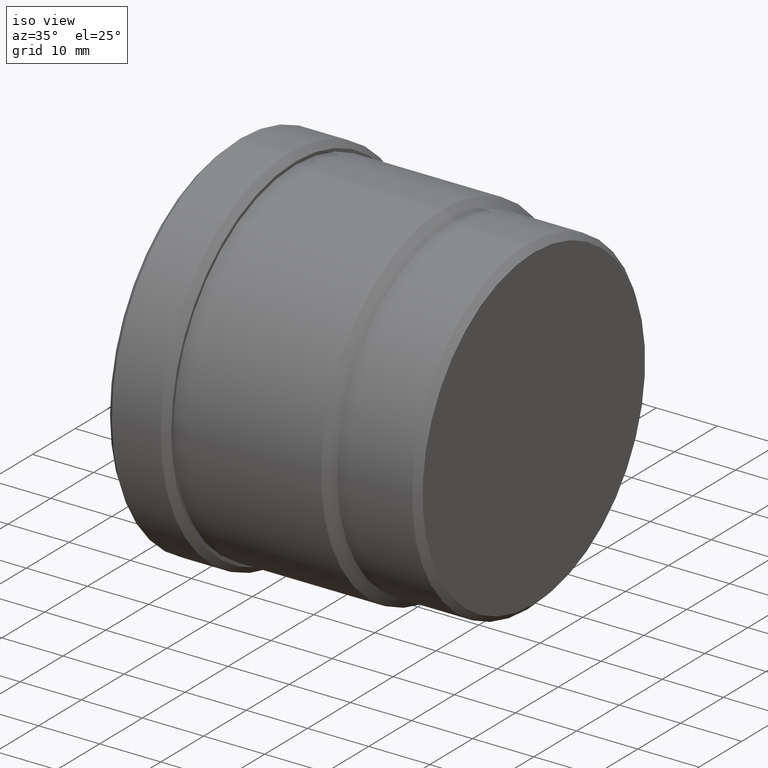
[diagram: clean part render]
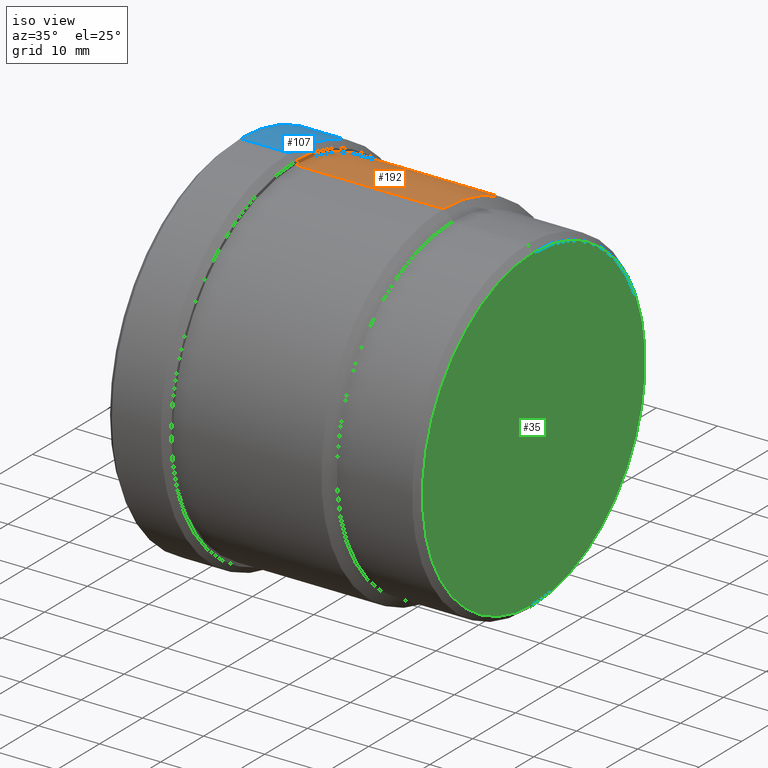
[diagram: same view with three faces highlighted in distinct colors, each labeled with its STEP entity id]
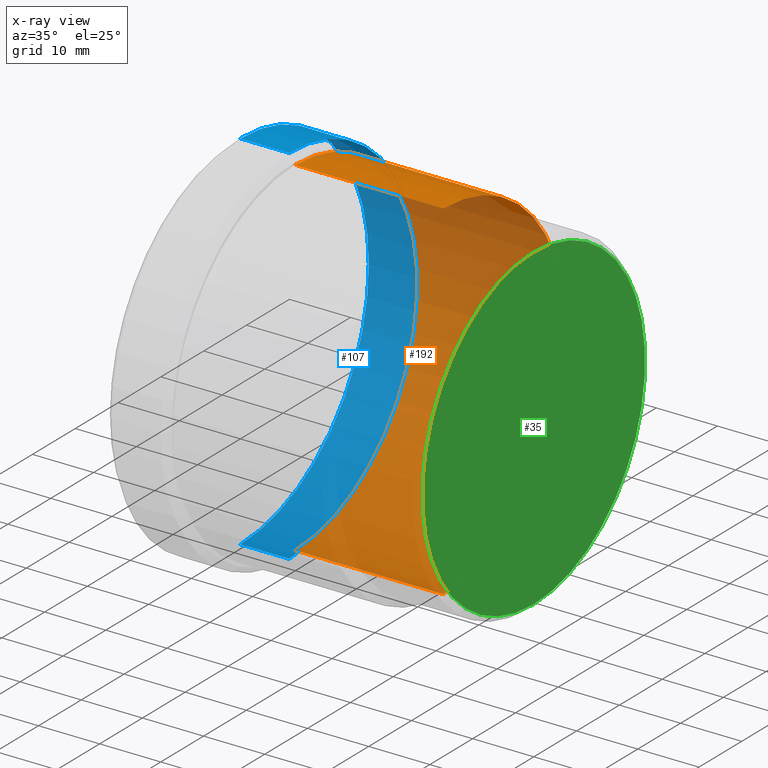
[diagram: x-ray of the same camera — body ghosted, the three highlighted faces saturated]
A machine part, iso view with three faces highlighted in distinct colors.
The next image is the same camera in x-ray (body ghosted, the three faces saturated) — at least one of them is partly hidden behind the body in this view.
Their STEP definitions:

[orange] entity #192 — the highlighted cylindrical surface (partial cylindrical patch) has radius 28.5 mm, axis along (-1, -0, -0).
#1 = DIRECTION ( 'NONE',  ( 0.000000000000000000, 0.000000000000000000, 1.000000000000000000 ) ) ;
#9 = DIRECTION ( 'NONE',  ( -1.000000000000000000, -0.000000000000000000, -0.000000000000000000 ) ) ;
#19 = CARTESIAN_POINT ( 'NONE',  ( 34.20000000000000995, 0.000000000000000000, 0.000000000000000000 ) ) ;
#22 = ORIENTED_EDGE ( 'NONE', *, *, #118, .F. ) ;
#38 = CARTESIAN_POINT ( 'NONE',  ( 10.00000000000000888, 0.000000000000000000, 0.000000000000000000 ) ) ;
#47 = VERTEX_POINT ( 'NONE', #459 ) ;
#55 = VERTEX_POINT ( 'NONE', #315 ) ;
#78 = CARTESIAN_POINT ( 'NONE',  ( -255.8344310284800258, 0.000000000000000000, 28.50000000000000000 ) ) ;
#80 = AXIS2_PLACEMENT_3D ( 'NONE', #19, #160, #332 ) ;
#92 = VERTEX_POINT ( 'NONE', #137 ) ;
#102 = ORIENTED_EDGE ( 'NONE', *, *, #383, .F. ) ;
#109 = ORIENTED_EDGE ( 'NONE', *, *, #308, .T. ) ;
#110 = FACE_OUTER_BOUND ( 'NONE', #209, .T. ) ;
#111 = AXIS2_PLACEMENT_3D ( 'NONE', #38, #9, #328 ) ;
#118 = EDGE_CURVE ( 'NONE', #55, #468, #219, .T. ) ;
#137 = CARTESIAN_POINT ( 'NONE',  ( 10.00000000000000888, 3.490243377569956456E-15, -28.50000000000000000 ) ) ;
#142 = DIRECTION ( 'NONE',  ( -1.000000000000000000, -0.000000000000000000, -0.000000000000000000 ) ) ;
#160 = DIRECTION ( 'NONE',  ( -1.000000000000000000, -0.000000000000000000, -0.000000000000000000 ) ) ;
#191 = ORIENTED_EDGE ( 'NONE', *, *, #284, .T. ) ;
#192 = ADVANCED_FACE ( 'NONE', ( #110 ), #438, .T. ) ;
#202 = CARTESIAN_POINT ( 'NONE',  ( 10.00000000000000888, 0.000000000000000000, 28.50000000000000000 ) ) ;
#209 = EDGE_LOOP ( 'NONE', ( #109, #191, #102, #22 ) ) ;
#219 = LINE ( 'NONE', #78, #431 ) ;
#228 = AXIS2_PLACEMENT_3D ( 'NONE', #322, #324, #1 ) ;
#256 = CIRCLE ( 'NONE', #111, 28.50000000000000000 ) ;
#284 = EDGE_CURVE ( 'NONE', #47, #92, #415, .T. ) ;
#301 = CARTESIAN_POINT ( 'NONE',  ( -255.8344310284800258, 3.490243377569956456E-15, -28.50000000000000000 ) ) ;
#308 = EDGE_CURVE ( 'NONE', #55, #47, #421, .T. ) ;
#315 = CARTESIAN_POINT ( 'NONE',  ( 34.20000000000000995, 0.000000000000000000, 28.50000000000000000 ) ) ;
#322 = CARTESIAN_POINT ( 'NONE',  ( -255.8344310284800258, 0.000000000000000000, 0.000000000000000000 ) ) ;
#324 = DIRECTION ( 'NONE',  ( -1.000000000000000000, -0.000000000000000000, -0.000000000000000000 ) ) ;
#328 = DIRECTION ( 'NONE',  ( 0.000000000000000000, 0.000000000000000000, 1.000000000000000000 ) ) ;
#332 = DIRECTION ( 'NONE',  ( 0.000000000000000000, 0.000000000000000000, 1.000000000000000000 ) ) ;
#343 = DIRECTION ( 'NONE',  ( -1.000000000000000000, -0.000000000000000000, -0.000000000000000000 ) ) ;
#362 = VECTOR ( 'NONE', #343, 1000.000000000000000 ) ;
#383 = EDGE_CURVE ( 'NONE', #468, #92, #256, .T. ) ;
#415 = LINE ( 'NONE', #301, #362 ) ;
#421 = CIRCLE ( 'NONE', #80, 28.50000000000000000 ) ;
#431 = VECTOR ( 'NONE', #142, 1000.000000000000000 ) ;
#438 = CYLINDRICAL_SURFACE ( 'NONE', #228, 28.50000000000000000 ) ;
#459 = CARTESIAN_POINT ( 'NONE',  ( 34.20000000000000995, 3.490243377569956456E-15, -28.50000000000000000 ) ) ;
#468 = VERTEX_POINT ( 'NONE', #202 ) ;

[blue] entity #107 — the highlighted cylindrical surface (partial cylindrical patch) has radius 30 mm, axis along (-1, -0, -0).
#6 = AXIS2_PLACEMENT_3D ( 'NONE', #470, #50, #146 ) ;
#40 = VECTOR ( 'NONE', #44, 1000.000000000000000 ) ;
#44 = DIRECTION ( 'NONE',  ( -1.000000000000000000, -0.000000000000000000, -0.000000000000000000 ) ) ;
#50 = DIRECTION ( 'NONE',  ( 1.000000000000000000, 0.000000000000000000, 0.000000000000000000 ) ) ;
#54 = ORIENTED_EDGE ( 'NONE', *, *, #199, .T. ) ;
#60 = VERTEX_POINT ( 'NONE', #313 ) ;
#76 = LINE ( 'NONE', #365, #40 ) ;
#90 = ORIENTED_EDGE ( 'NONE', *, *, #251, .F. ) ;
#107 = ADVANCED_FACE ( 'NONE', ( #132 ), #355, .T. ) ;
#126 = CARTESIAN_POINT ( 'NONE',  ( 9.000000000000063949, 0.000000000000000000, 30.00000000000000000 ) ) ;
#132 = FACE_OUTER_BOUND ( 'NONE', #409, .T. ) ;
#135 = EDGE_CURVE ( 'NONE', #248, #60, #398, .T. ) ;
#146 = DIRECTION ( 'NONE',  ( 0.000000000000000000, 0.000000000000000000, -1.000000000000000000 ) ) ;
#151 = ORIENTED_EDGE ( 'NONE', *, *, #135, .T. ) ;
#173 = CARTESIAN_POINT ( 'NONE',  ( -255.8344310284800258, 0.000000000000000000, 0.000000000000000000 ) ) ;
#199 = EDGE_CURVE ( 'NONE', #373, #379, #349, .T. ) ;
#222 = CARTESIAN_POINT ( 'NONE',  ( 1.000000000000000888, 3.673940397442059178E-15, -30.00000000000000000 ) ) ;
#248 = VERTEX_POINT ( 'NONE', #222 ) ;
#251 = EDGE_CURVE ( 'NONE', #373, #60, #76, .T. ) ;
#278 = DIRECTION ( 'NONE',  ( -1.000000000000000000, -0.000000000000000000, -0.000000000000000000 ) ) ;
#287 = DIRECTION ( 'NONE',  ( 0.000000000000000000, 0.000000000000000000, 1.000000000000000000 ) ) ;
#289 = DIRECTION ( 'NONE',  ( -1.000000000000000000, -0.000000000000000000, -0.000000000000000000 ) ) ;
#303 = CARTESIAN_POINT ( 'NONE',  ( -255.8344310284800258, 3.673940397442059178E-15, -30.00000000000000000 ) ) ;
#313 = CARTESIAN_POINT ( 'NONE',  ( 1.000000000000000888, 0.000000000000000000, 30.00000000000000000 ) ) ;
#319 = VECTOR ( 'NONE', #351, 1000.000000000000000 ) ;
#327 = ORIENTED_EDGE ( 'NONE', *, *, #469, .T. ) ;
#349 = CIRCLE ( 'NONE', #412, 30.00000000000000000 ) ;
#351 = DIRECTION ( 'NONE',  ( -1.000000000000000000, -0.000000000000000000, -0.000000000000000000 ) ) ;
#355 = CYLINDRICAL_SURFACE ( 'NONE', #417, 30.00000000000000000 ) ;
#360 = CARTESIAN_POINT ( 'NONE',  ( 9.000000000000063949, 3.673940397442059178E-15, -30.00000000000000000 ) ) ;
#361 = CARTESIAN_POINT ( 'NONE',  ( 9.000000000000063949, 0.000000000000000000, 0.000000000000000000 ) ) ;
#365 = CARTESIAN_POINT ( 'NONE',  ( -255.8344310284800258, 0.000000000000000000, 30.00000000000000000 ) ) ;
#373 = VERTEX_POINT ( 'NONE', #126 ) ;
#379 = VERTEX_POINT ( 'NONE', #360 ) ;
#398 = CIRCLE ( 'NONE', #6, 30.00000000000000000 ) ;
#409 = EDGE_LOOP ( 'NONE', ( #54, #327, #151, #90 ) ) ;
#412 = AXIS2_PLACEMENT_3D ( 'NONE', #361, #289, #287 ) ;
#417 = AXIS2_PLACEMENT_3D ( 'NONE', #173, #278, #420 ) ;
#420 = DIRECTION ( 'NONE',  ( 0.000000000000000000, 0.000000000000000000, 1.000000000000000000 ) ) ;
#423 = LINE ( 'NONE', #303, #319 ) ;
#469 = EDGE_CURVE ( 'NONE', #379, #248, #423, .T. ) ;
#470 = CARTESIAN_POINT ( 'NONE',  ( 1.000000000000000888, 0.000000000000000000, 0.000000000000000000 ) ) ;

[green] entity #35 — the highlighted planar face has unit normal (-1, 0, -0).
#10 = DIRECTION ( 'NONE',  ( 1.000000000000000000, 0.000000000000000000, 0.000000000000000000 ) ) ;
#35 = ADVANCED_FACE ( 'NONE', ( #359 ), #36, .F. ) ;
#36 = PLANE ( 'NONE',  #212 ) ;
#37 = ORIENTED_EDGE ( 'NONE', *, *, #390, .T. ) ;
#42 = DIRECTION ( 'NONE',  ( 0.000000000000000000, 0.000000000000000000, 1.000000000000000000 ) ) ;
#103 = DIRECTION ( 'NONE',  ( -0.000000000000000000, 0.000000000000000000, 1.000000000000000000 ) ) ;
#104 = AXIS2_PLACEMENT_3D ( 'NONE', #333, #10, #42 ) ;
#121 = CIRCLE ( 'NONE', #299, 25.99999999999995381 ) ;
#138 = CIRCLE ( 'NONE', #104, 25.99999999999995381 ) ;
#158 = EDGE_CURVE ( 'NONE', #374, #257, #138, .T. ) ;
#176 = CARTESIAN_POINT ( 'NONE',  ( 49.00000000000000000, 27.00000000000000000, 0.000000000000000000 ) ) ;
#179 = CARTESIAN_POINT ( 'NONE',  ( 49.00000000000000000, 3.245314017740483398E-15, -25.99999999999995381 ) ) ;
#212 = AXIS2_PLACEMENT_3D ( 'NONE', #176, #249, #103 ) ;
#233 = DIRECTION ( 'NONE',  ( 0.000000000000000000, 0.000000000000000000, 1.000000000000000000 ) ) ;
#249 = DIRECTION ( 'NONE',  ( -1.000000000000000000, 0.000000000000000000, -0.000000000000000000 ) ) ;
#257 = VERTEX_POINT ( 'NONE', #179 ) ;
#270 = CARTESIAN_POINT ( 'NONE',  ( 49.00000000000000000, 0.000000000000000000, 0.000000000000000000 ) ) ;
#272 = CARTESIAN_POINT ( 'NONE',  ( 49.00000000000000000, 0.000000000000000000, 25.99999999999995381 ) ) ;
#299 = AXIS2_PLACEMENT_3D ( 'NONE', #270, #444, #233 ) ;
#333 = CARTESIAN_POINT ( 'NONE',  ( 49.00000000000000000, 0.000000000000000000, 0.000000000000000000 ) ) ;
#337 = ORIENTED_EDGE ( 'NONE', *, *, #158, .T. ) ;
#359 = FACE_OUTER_BOUND ( 'NONE', #435, .T. ) ;
#374 = VERTEX_POINT ( 'NONE', #272 ) ;
#390 = EDGE_CURVE ( 'NONE', #257, #374, #121, .T. ) ;
#435 = EDGE_LOOP ( 'NONE', ( #337, #37 ) ) ;
#444 = DIRECTION ( 'NONE',  ( 1.000000000000000000, 0.000000000000000000, 0.000000000000000000 ) ) ;